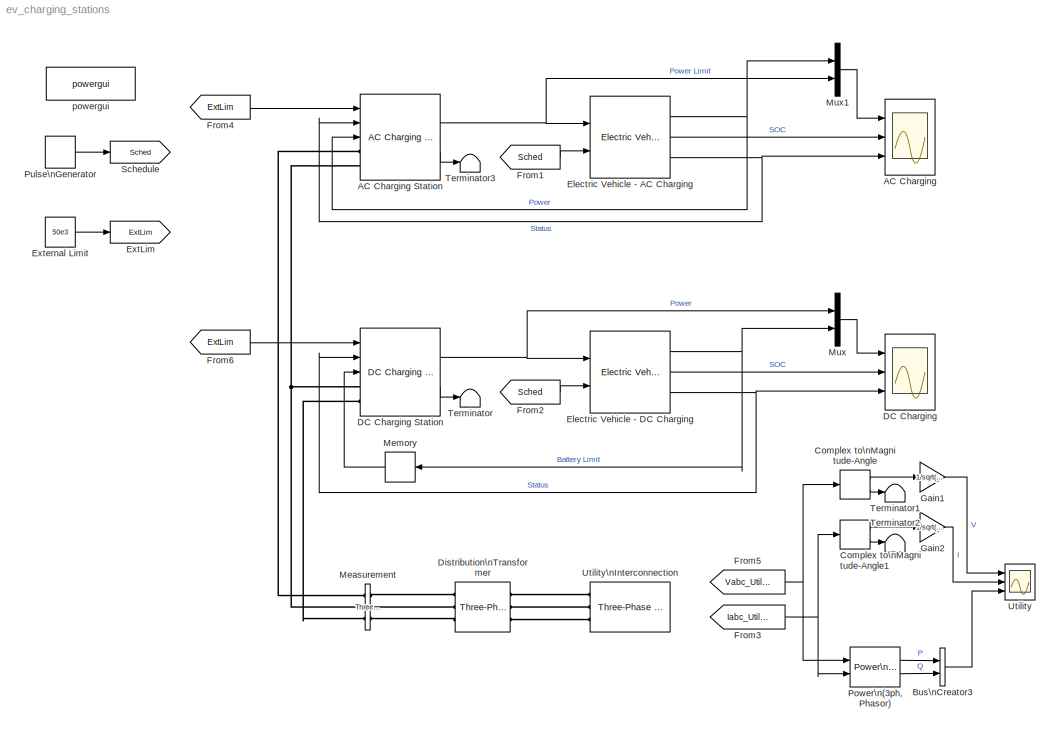
MODEL ev_charging_stations
KIND model
BLOCK [Scope] AC Charging
  DataFormat = StructureWithTime
  Floating = off
  LegendLocations = 0.56121     0.90679     0.34568     0.04586\n0.65844     0.61401     0.24691    0.025902\n0.63374     0.30191      0.2716    0.025902
  LimitDataPoints = off
  NumInputPorts = 3
  Ports = [3]
  SID = 27
  SampleTime = 0
  SaveName = ScopeData1
  ShowLegends = on
  TimeRange = 15000
  YMax = 6000~1~0
  YMin = 0~0~-1
  ZoomMode = xonly
BLOCK [Reference] AC Charging Station  REF=CampusEnergyModeling/Electric Vehicles/AC Charging Station
  Ports = [3, 2, 0, 0, 0, 2]
  SID = 118
  SourceBlock = CampusEnergyModeling/Electric Vehicles/AC Charging Station
  SourceType = AC Charging Station
  eff = 0.99
  freq = 60
  pf = 0.99
  prated = 6000
  pstandby = 10
  vrated = 240
BLOCK [BusCreator] Bus\nCreator3
  DisplayOption = bar
  Inputs = 2
  Ports = [2, 1]
  SID = 110
BLOCK [ComplexToMagnitudeAngle] Complex to\nMagnitude-Angle
  Ports = [1, 2]
  SID = 120
BLOCK [ComplexToMagnitudeAngle] Complex to\nMagnitude-Angle1
  Ports = [1, 2]
  SID = 122
BLOCK [Scope] DC Charging
  DataFormat = StructureWithTime
  Floating = off
  LegendLocations = 0.55195     0.90691     0.35494    0.045802\n0.65844      0.6145     0.24691    0.025869\n0.63374     0.30153      0.2716    0.025869
  LimitDataPoints = off
  NumInputPorts = 3
  Ports = [3]
  SID = 6
  SampleTime = 0
  ShowLegends = on
  TimeRange = 15000
  YMax = 1000~1~0
  YMin = 0~0~-1
  ZoomMode = yonly
BLOCK [Reference] DC Charging Station  REF=CampusEnergyModeling/Electric Vehicles/DC Charging Station
  Ports = [3, 2, 0, 0, 0, 2]
  SID = 119
  SourceBlock = CampusEnergyModeling/Electric Vehicles/DC Charging Station
  SourceType = DC Charging Station
  eff = 0.97
  freq = 60
  pf = 0.99
  prated = 24000
  pstandby = 100
  vrated = 240
BLOCK [Reference] Distribution\nTransformer  REF=powerlib/Elements/Three-Phase\nTransformer\n(Two Windings)
  BreakLoop = off
  DataFile = 'hysteresis'
  DataType = off
  Hysteresis = off
  InitialFluxes = [ 0.8 , -0.8 , 0.7 ]
  Lm = 200
  Measurements = None
  MoreParameters = off
  NominalPower = [10e3 , 60]
  Ports = [0, 0, 0, 0, 0, 3, 3]
  Rm = 500
  SID = 41
  Saturation = [ 0,0 ; 0.0024,1.2 ; 1.0,1.52 ]
  SetInitialFlux = off
  SetSaturation = off
  SourceBlock = powerlib/Elements/Three-Phase\nTransformer\n(Two Windings)
  SourceType = Three-Phase Transformer (Two Windings)
  TransfoNumber = 1
  UNITS = pu
  Winding1 = [13.2e3 , 0.02/2 , 0.05/(120*pi)/2]
  Winding1Connection = Delta (D1)
  Winding2 = [208 , 0.02/2 , 0.05/(120*pi)/2]
  Winding2Connection = Yg
BLOCK [Reference] Electric Vehicle - AC Charging  REF=CampusEnergyModeling/Electric Vehicles/Electric Vehicle
  Ports = [2, 3]
  SID = 12
  SourceBlock = CampusEnergyModeling/Electric Vehicles/Electric Vehicle
  SourceType = Electric Vehicle
  battEff = 0.98
  capacity = 1000
  chargerEff = 0.98
  ctype = AC
  initSOC = 0
  profile = off
  profileRate = [0.10 0.20 1.00 1.00 0.01 0.00]
  profileSOC = [0.00 0.10 0.20 0.80 0.99 1.00]
  rating = 1000
BLOCK [Reference] Electric Vehicle - DC Charging  REF=CampusEnergyModeling/Electric Vehicles/Electric Vehicle
  Ports = [2, 3]
  SID = 8
  SourceBlock = CampusEnergyModeling/Electric Vehicles/Electric Vehicle
  SourceType = Electric Vehicle
  battEff = 0.98
  capacity = 1000
  chargerEff = 0.96
  ctype = DC
  initSOC = 0
  profile = off
  profileRate = [0.10 0.20 1.00 1.00 0.01 0.00]
  profileSOC = [0.00 0.10 0.20 0.80 0.99 1.00]
  rating = 6240
BLOCK [Goto] ExtLim
  GotoTag = ExtLim
  SID = 98
BLOCK [Constant] External Limit
  SID = 97
  Value = 50e3
BLOCK [From] From1
  GotoTag = Sched
  SID = 29
BLOCK [From] From2
  GotoTag = Sched
  SID = 31
BLOCK [From] From3
  GotoTag = Iabc_Utility
  SID = 42
  TagVisibility = global
BLOCK [From] From4
  GotoTag = ExtLim
  SID = 99
BLOCK [From] From5
  GotoTag = Vabc_Utility
  SID = 44
  TagVisibility = global
BLOCK [From] From6
  GotoTag = ExtLim
  SID = 100
BLOCK [Gain] Gain1
  Gain = 1/sqrt(2)
  OutDataTypeStr = Inherit: Inherit via internal rule
  ParamDataTypeStr = Inherit: Inherit via internal rule
  SID = 116
  SaturateOnIntegerOverflow = off
BLOCK [Gain] Gain2
  Gain = 1/sqrt(2)
  OutDataTypeStr = Inherit: Inherit via internal rule
  ParamDataTypeStr = Inherit: Inherit via internal rule
  SID = 123
  SaturateOnIntegerOverflow = off
BLOCK [Reference] Measurement  REF=powerlib/Measurements/Three-Phase\nV-I Measurement
  CurrentMeasurement = yes
  Ipu = off
  LabelI = Iabc_Utility
  LabelV = Vabc_Utility
  OutputType = Complex
  PSBequivalent = 0
  Pbase = 10e3
  PhasorSimulation = on
  Ports = [0, 0, 0, 0, 0, 3, 3]
  SID = 46
  SetLabelI = on
  SetLabelV = on
  SourceBlock = powerlib/Measurements/Three-Phase\nV-I Measurement
  SourceType = Three-Phase VI Measurement
  Vbase = 208
  VoltageMeasurement = phase-to-ground
  Vpu = off
  VpuLL = off
BLOCK [Memory] Memory
  SID = 102
BLOCK [Mux] Mux
  DisplayOption = bar
  Inputs = 2
  Ports = [2, 1]
  SID = 25
BLOCK [Mux] Mux1
  DisplayOption = bar
  Inputs = 2
  Ports = [2, 1]
  SID = 26
BLOCK [Reference] Power\n(3ph, Phasor)  REF=powerlib_meascontrol/Measurements/Power\n(3ph, Phasor)
  Ports = [2, 2]
  SID = 113
  SourceBlock = powerlib_meascontrol/Measurements/Power\n(3ph, Phasor)
  SourceType = Power (3ph, Phasor)
BLOCK [DiscretePulseGenerator] Pulse\nGenerator
  Period = 9000
  PhaseDelay = 1800
  Ports = [0, 1]
  PulseType = Time based
  PulseWidth = 90
  SID = 28
BLOCK [Goto] Schedule
  GotoTag = Sched
  SID = 30
BLOCK [Terminator] Terminator
  SID = 101
BLOCK [Terminator] Terminator1
  SID = 121
BLOCK [Terminator] Terminator2
  SID = 124
BLOCK [Terminator] Terminator3
  SID = 125
BLOCK [Scope] Utility
  DataFormat = StructureWithTime
  Floating = off
  LegendLocations = 0.67595      0.8869      0.2291    0.066155\n0.68834      0.5732     0.21672    0.066155\n0.70227      0.2802     0.20433    0.046095
  LimitDataPoints = off
  NumInputPorts = 3
  Ports = [3]
  SID = 50
  SampleTime = 0
  SaveName = ScopeData2
  ShowLegends = on
  TimeRange = 15000
  YMax = 121~20.51886792452825~4988.262910798119
  YMin = 112~0~0
  ZoomMode = yonly
BLOCK [Reference] Utility\nInterconnection  REF=powerlib/Electrical\nSources/Three-Phase Source
  BaseVoltage = 13.2e3
  BusType = swing
  Frequency = 60
  Inductance = 16.58e-3
  InternalConnection = Yg
  PhaseAngle = 0
  Ports = [0, 0, 0, 0, 0, 0, 3]
  Pref = 0
  Qmax = inf
  Qmin = -inf
  Qref = 0
  Resistance = 0.8929
  SID = 49
  ShortCircuitLevel = 1e6
  SourceBlock = powerlib/Electrical\nSources/Three-Phase Source
  SourceType = Three-Phase Source
  SpecifyImpedance = on
  Voltage = 13.2e3
  XRratio = 8
BLOCK [Reference] powergui  REF=powerlib/powergui
  DisableRonSwitches = off
  DisableSnubberDevices = off
  DisableVfSwitches = off
  DisplayEquations = off
  DisplayStyle = 1
  EnableUseOfTLC = off
  ErrMax = 1e-4
  Frange = [0:2:500]
  FreqAxis = off
  FunctionMessages = off
  HookPort = off
  Interpol = off
  Iterations = 50
  MaxFrequency = 5000
  Pbase = 100e6
  Ports = []
  Priority = 2
  ResistiveCurrentMeasurement = off
  RestoreLinks = warning
  RmsSteady = 1
  SID = 51
  SPID = off
  SampleTime = Ts
  ShowGrid = off
  SolverType = Tustin
  SourceBlock = powerlib/powergui
  SourceType = PSB option menu block
  StartTime = 0.26
  SwTol = 0
  Ts = 0
  UnitsV = kV
  UnitsW = kW
  UserData = DataTag0
  UserDataPersistent = on
  Xlog = on
  Ylog = off
  ZoomFFT = on
  cycles = 2
  display = off
  echomessages = off
  frequency = 60
  frequencyindice = 60
  frequencyindicesteady = 1
  fundamental = 60
  methode = off
  save = off
  structure = Sig1
  variable = ZData
  x0status = blocks
NET AC Charging Station:1 -> Electric Vehicle - AC Charging:1, Mux1:2
LINE AC Charging Station:2 -> Terminator3:1
LINE Bus\nCreator3:1 -> Utility:3
LINE Complex to\nMagnitude-Angle1:1 -> Gain2:1
LINE Complex to\nMagnitude-Angle1:2 -> Terminator2:1
LINE Complex to\nMagnitude-Angle:1 -> Gain1:1
LINE Complex to\nMagnitude-Angle:2 -> Terminator1:1
NET DC Charging Station:1 -> Electric Vehicle - DC Charging:1, Mux:1
LINE DC Charging Station:2 -> Terminator:1
NET Electric Vehicle - AC Charging:1 -> AC Charging Station:3, Mux1:1
LINE Electric Vehicle - AC Charging:2 -> AC Charging:2
NET Electric Vehicle - AC Charging:3 -> AC Charging Station:2, AC Charging:3
NET Electric Vehicle - DC Charging:1 -> Memory:1, Mux:2
LINE Electric Vehicle - DC Charging:2 -> DC Charging:2
NET Electric Vehicle - DC Charging:3 -> DC Charging Station:2, DC Charging:3
LINE External Limit:1 -> ExtLim:1
LINE From1:1 -> Electric Vehicle - AC Charging:2
LINE From2:1 -> Electric Vehicle - DC Charging:2
NET From3:1 -> Complex to\nMagnitude-Angle1:1, Power\n(3ph, Phasor):2
LINE From4:1 -> AC Charging Station:1
NET From5:1 -> Complex to\nMagnitude-Angle:1, Power\n(3ph, Phasor):1
LINE From6:1 -> DC Charging Station:1
LINE Gain1:1 -> Utility:1
LINE Gain2:1 -> Utility:2
LINE Memory:1 -> DC Charging Station:3
LINE Mux1:1 -> AC Charging:1
LINE Mux:1 -> DC Charging:1
LINE Power\n(3ph, Phasor):1 -> Bus\nCreator3:1
LINE Power\n(3ph, Phasor):2 -> Bus\nCreator3:2
LINE Pulse\nGenerator:1 -> Schedule:1
PLINE AC Charging Station:LConn1 -- Measurement:RConn1
PNET net1: AC Charging Station:LConn2 -- DC Charging Station:LConn1 -- Measurement:RConn2
PLINE DC Charging Station:LConn2 -- Measurement:RConn3
PLINE Distribution\nTransformer:LConn1 -- Utility\nInterconnection:RConn1
PLINE Distribution\nTransformer:LConn2 -- Utility\nInterconnection:RConn2
PLINE Distribution\nTransformer:LConn3 -- Utility\nInterconnection:RConn3
PLINE Distribution\nTransformer:RConn1 -- Measurement:LConn1
PLINE Distribution\nTransformer:RConn2 -- Measurement:LConn2
PLINE Distribution\nTransformer:RConn3 -- Measurement:LConn3
note: NET lines group one-source signal fan-out (src -> all destinations, sorted); 1:1 wires keep LINE; PNET lines group multi-terminal physical nets as a canonical sorted terminal list (undirected conserving connections); 2-terminal nets keep the pairwise PLINE form
